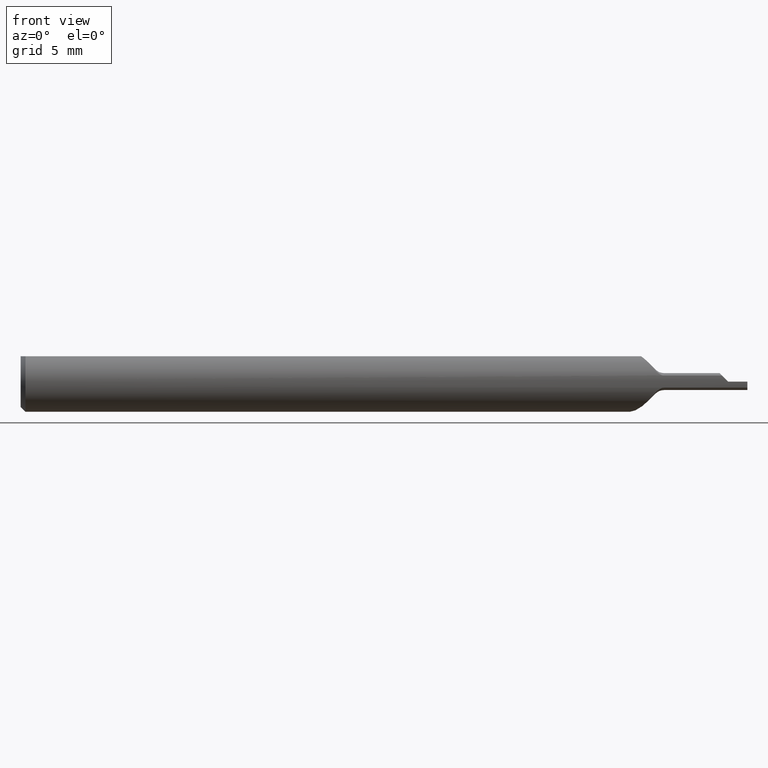
[diagram: clean part render]
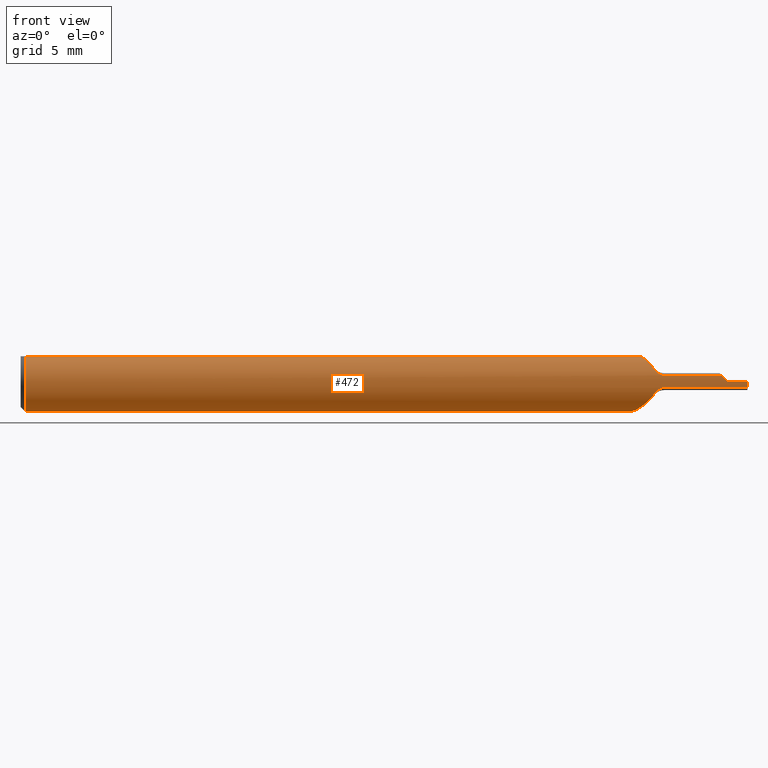
[diagram: same view with one face highlighted and labeled with its STEP entity id]
A machine part, front view. The second image highlights one B-rep face of the part: STEP entity #472.
In plain terms, the highlighted cylindrical surface (edge-blend (fillet) strip) has radius 1.5837 mm, axis along (-1, -0, -0).
Its self-contained STEP definition (entity closure, byte-faithful):
#8 = AXIS2_PLACEMENT_3D ( 'NONE', #458, #41, #248 ) ;
#13 = ORIENTED_EDGE ( 'NONE', *, *, #675, .F. ) ;
#34 = CARTESIAN_POINT ( 'NONE',  ( 1.451605865465561029, -0.06192549230869275056, 0.008394134534439167544 ) ) ;
#36 = LINE ( 'NONE', #112, #115 ) ;
#41 = DIRECTION ( 'NONE',  ( 1.000000000000000000, 0.000000000000000000, 0.000000000000000000 ) ) ;
#43 = CARTESIAN_POINT ( 'NONE',  ( 1.275358580142834652, -0.02771937408487656906, -0.05598997618229406559 ) ) ;
#44 = CARTESIAN_POINT ( 'NONE',  ( 1.328000000000000069, -0.06108080859774817767, -0.01251628223735987665 ) ) ;
#45 = DIRECTION ( 'NONE',  ( -1.000000000000000000, -0.000000000000000000, -0.000000000000000000 ) ) ;
#49 = CARTESIAN_POINT ( 'NONE',  ( 1.226797206081656988, 0.05592648175052387927, 0.02799002807874791804 ) ) ;
#55 = VERTEX_POINT ( 'NONE', #758 ) ;
#56 = CARTESIAN_POINT ( 'NONE',  ( 1.243886696044967710, 0.02097139061819394690, -0.05887746032603118074 ) ) ;
#67 = AXIS2_PLACEMENT_3D ( 'NONE', #673, #387, #175 ) ;
#74 = B_SPLINE_CURVE_WITH_KNOTS ( 'NONE', 3,
 ( #44, #851, #335, #270, #696, #566 ),
 .UNSPECIFIED., .F., .F.,
 ( 4, 2, 4 ),
 ( 1.961994360720521054E-07, 0.0002730078589434217838, 0.0005458195184507715850 ),
 .UNSPECIFIED. ) ;
#85 = CARTESIAN_POINT ( 'NONE',  ( 1.500000000000000222, 0.000000000000000000, 0.000000000000000000 ) ) ;
#94 = EDGE_CURVE ( 'NONE', #613, #55, #494, .T. ) ;
#99 = CARTESIAN_POINT ( 'NONE',  ( 1.305791166114985691, -0.05560643594609585016, -0.02887963871485707892 ) ) ;
#106 = ORIENTED_EDGE ( 'NONE', *, *, #238, .F. ) ;
#110 = ORIENTED_EDGE ( 'NONE', *, *, #94, .F. ) ;
#112 = CARTESIAN_POINT ( 'NONE',  ( 0.000000000000000000, -0.03386738844375224849, 0.05234999999999997294 ) ) ;
#115 = VECTOR ( 'NONE', #397, 39.37007874015748143 ) ;
#121 = CARTESIAN_POINT ( 'NONE',  ( 1.290272464145333586, -0.04369941679369290788, -0.04464469873827295321 ) ) ;
#125 = CARTESIAN_POINT ( 'NONE',  ( 1.266747118912807668, -0.01641413537815324813, -0.06028500946651924042 ) ) ;
#128 = LINE ( 'NONE', #403, #932 ) ;
#133 = EDGE_CURVE ( 'NONE', #686, #228, #36, .T. ) ;
#136 = CARTESIAN_POINT ( 'NONE',  ( 1.235731661812906168, 0.03691102635646652946, -0.05046266542797422233 ) ) ;
#138 = VERTEX_POINT ( 'NONE', #623 ) ;
#146 = VECTOR ( 'NONE', #376, 39.37007874015748143 ) ;
#153 = CARTESIAN_POINT ( 'NONE',  ( 1.280692836829395720, -0.03386738844375222768, 0.05234999999999997294 ) ) ;
#158 = LINE ( 'NONE', #872, #607 ) ;
#168 = CARTESIAN_POINT ( 'NONE',  ( 1.310322330470336416, -0.05790887318343304613, -0.02311027707806784237 ) ) ;
#169 = ORIENTED_EDGE ( 'NONE', *, *, #888, .F. ) ;
#171 = EDGE_CURVE ( 'NONE', #651, #897, #714, .T. ) ;
#175 = DIRECTION ( 'NONE',  ( 0.000000000000000000, 0.000000000000000000, 1.000000000000000000 ) ) ;
#199 = ORIENTED_EDGE ( 'NONE', *, *, #713, .F. ) ;
#203 = CARTESIAN_POINT ( 'NONE',  ( 1.284238538065767488, -0.03778417318145798481, -0.04975082321463265844 ) ) ;
#219 = DIRECTION ( 'NONE',  ( 0.000000000000000000, 0.000000000000000000, -1.000000000000000000 ) ) ;
#228 = VERTEX_POINT ( 'NONE', #699 ) ;
#238 = EDGE_CURVE ( 'NONE', #301, #320, #74, .T. ) ;
#248 = DIRECTION ( 'NONE',  ( 0.000000000000000000, 0.000000000000000000, -1.000000000000000000 ) ) ;
#262 = CARTESIAN_POINT ( 'NONE',  ( 1.328000000000000069, -0.06108080859774817767, 0.01251628223735987665 ) ) ;
#266 = CARTESIAN_POINT ( 'NONE',  ( 1.258604930610921491, -0.004327236796243898870, -0.06233527284537540569 ) ) ;
#270 = CARTESIAN_POINT ( 'NONE',  ( 1.315005209892369908, -0.05976161622093303927, -0.01789465587661744767 ) ) ;
#275 = B_SPLINE_CURVE_WITH_KNOTS ( 'NONE', 3,
 ( #336, #698, #121, #203, #406, #43, #630, #125, #930, #266, #484, #790, #561, #56, #941, #846, #136, #936, #716, #416, #854, #553, #639, #409, #488, #783, #704, #420, #49, #341, #346, #710 ),
 .UNSPECIFIED., .F., .F.,
 ( 4, 2, 2, 2, 2, 2, 2, 2, 2, 2, 2, 2, 2, 2, 2, 4 ),
 ( 0.0005794281082984382471, 0.0009548221528387602301, 0.001330216197379082213, 0.001705610241919404196, 0.002081004286459726179, 0.002456398331000047945, 0.002831792375540370145, 0.003207186420080692345, 0.003582580464621014545, 0.003957974509161336744, 0.004333368553701655475, 0.004708762598241975073, 0.005084156642782293803, 0.005459550687322614268, 0.005834944731862932998, 0.006585732820943570459 ),
 .UNSPECIFIED. ) ;
#276 = VERTEX_POINT ( 'NONE', #942 ) ;
#300 = CARTESIAN_POINT ( 'NONE',  ( 1.447483717762639843, -0.06108080859774819155, 0.01251628223735986277 ) ) ;
#301 = VERTEX_POINT ( 'NONE', #481 ) ;
#317 = CYLINDRICAL_SURFACE ( 'NONE', #67, 0.06235000000000000264 ) ;
#319 = CARTESIAN_POINT ( 'NONE',  ( 1.328000000000000069, -0.06108080859774817767, 0.01251628223735987665 ) ) ;
#320 = VERTEX_POINT ( 'NONE', #775 ) ;
#324 =( BOUNDED_CURVE ( )  B_SPLINE_CURVE ( 3, ( #455, #541, #34, #300 ),
 .UNSPECIFIED., .F., .T. ) 
 B_SPLINE_CURVE_WITH_KNOTS ( ( 4, 4 ),
 ( 4.712388980384689674, 4.914504563857410524 ),
 .UNSPECIFIED. ) 
 CURVE ( )  GEOMETRIC_REPRESENTATION_ITEM ( )  RATIONAL_B_SPLINE_CURVE ( ( 1.000000000000000000, 0.9965986704452858280, 0.9965986704452858280, 1.000000000000000000 ) ) 
 REPRESENTATION_ITEM ( '' )  );
#331 = CARTESIAN_POINT ( 'NONE',  ( 1.310322330470336416, -0.05790887318343304613, 0.02311027707806784237 ) ) ;
#333 = EDGE_CURVE ( 'NONE', #686, #276, #509, .T. ) ;
#335 = CARTESIAN_POINT ( 'NONE',  ( 1.320917692584105074, -0.06080192119646979365, -0.01395692878461889282 ) ) ;
#336 = CARTESIAN_POINT ( 'NONE',  ( 1.296399338642361565, -0.04885000000000000453, -0.03874532229831106206 ) ) ;
#339 = ORIENTED_EDGE ( 'NONE', *, *, #914, .F. ) ;
#341 = CARTESIAN_POINT ( 'NONE',  ( 1.230229168581589816, 0.04839488953273463068, 0.04049962096708457221 ) ) ;
#343 = EDGE_CURVE ( 'NONE', #228, #613, #879, .T. ) ;
#344 = DIRECTION ( 'NONE',  ( -1.000000000000000000, -0.000000000000000000, -0.000000000000000000 ) ) ;
#346 = CARTESIAN_POINT ( 'NONE',  ( 1.233383615634219943, 0.04162220789005000032, 0.04733308533908438254 ) ) ;
#349 = CARTESIAN_POINT ( 'NONE',  ( 0.009999999999999887451, 0.000000000000000000, 0.000000000000000000 ) ) ;
#351 = EDGE_CURVE ( 'NONE', #629, #651, #837, .T. ) ;
#360 = CARTESIAN_POINT ( 'NONE',  ( 1.296399338642361565, -0.04885000000000000453, 0.03874532229831106206 ) ) ;
#369 = B_SPLINE_CURVE_WITH_KNOTS ( 'NONE', 3,
 ( #331, #477, #772, #627, #926, #262 ),
 .UNSPECIFIED., .F., .F.,
 ( 4, 2, 4 ),
 ( 3.346069241335862166E-07, 0.0002723149243493555301, 0.0005442952417745775505 ),
 .UNSPECIFIED. ) ;
#376 = DIRECTION ( 'NONE',  ( -1.000000000000000000, -0.000000000000000000, -0.000000000000000000 ) ) ;
#378 = FACE_OUTER_BOUND ( 'NONE', #487, .T. ) ;
#386 = ORIENTED_EDGE ( 'NONE', *, *, #944, .F. ) ;
#387 = DIRECTION ( 'NONE',  ( -1.000000000000000000, -0.000000000000000000, -0.000000000000000000 ) ) ;
#390 = CARTESIAN_POINT ( 'NONE',  ( 1.305816642641693948, -0.05561938142747126224, 0.02884720040887161704 ) ) ;
#392 = VERTEX_POINT ( 'NONE', #593 ) ;
#397 = DIRECTION ( 'NONE',  ( 1.000000000000000000, 0.000000000000000000, 0.000000000000000000 ) ) ;
#403 = CARTESIAN_POINT ( 'NONE',  ( 1.400116490632940414, -0.06108080859774817767, -0.01251628223735987838 ) ) ;
#406 = CARTESIAN_POINT ( 'NONE',  ( 1.281262241805919189, -0.03458795510178934440, -0.05202801643756744393 ) ) ;
#409 = CARTESIAN_POINT ( 'NONE',  ( 1.223972065761688155, 0.06228624462976680570, -0.005677941240280068129 ) ) ;
#416 = CARTESIAN_POINT ( 'NONE',  ( 1.228161114752954086, 0.05291627376059242216, -0.03331670432072829369 ) ) ;
#420 = CARTESIAN_POINT ( 'NONE',  ( 1.225898378997372085, 0.05793721673796965038, 0.02356019257413410894 ) ) ;
#421 = DIRECTION ( 'NONE',  ( 1.000000000000000000, 0.000000000000000000, 0.000000000000000000 ) ) ;
#426 = DIRECTION ( 'NONE',  ( 0.000000000000000000, 0.000000000000000000, 1.000000000000000000 ) ) ;
#428 = EDGE_CURVE ( 'NONE', #828, #392, #158, .T. ) ;
#432 = CARTESIAN_POINT ( 'NONE',  ( 0.000000000000000000, 0.03386738844375224849, 0.05234999999999997294 ) ) ;
#439 = CARTESIAN_POINT ( 'NONE',  ( 1.285897383745186584, -0.03966876148853260009, 0.04859685091853504363 ) ) ;
#442 = CARTESIAN_POINT ( 'NONE',  ( 1.500000000000000222, -0.06235000000000000264, 0.000000000000000000 ) ) ;
#455 = CARTESIAN_POINT ( 'NONE',  ( 1.459999999999999964, -0.06235000000000005121, 4.898587196589446663E-18 ) ) ;
#458 = CARTESIAN_POINT ( 'NONE',  ( 0.009999999999999887451, 0.000000000000000000, 0.000000000000000000 ) ) ;
#470 = CARTESIAN_POINT ( 'NONE',  ( 1.296399338642361565, -0.04885000000000000453, -0.03874532229831106206 ) ) ;
#472 = ADVANCED_FACE ( 'NONE', ( #378 ), #317, .T. ) ;
#477 = CARTESIAN_POINT ( 'NONE',  ( 1.312456224277631200, -0.05899317650530144785, 0.02039327012283572924 ) ) ;
#481 = CARTESIAN_POINT ( 'NONE',  ( 1.328000000000000069, -0.06108080859774817767, -0.01251628223735987665 ) ) ;
#483 = EDGE_CURVE ( 'NONE', #897, #392, #324, .T. ) ;
#484 = CARTESIAN_POINT ( 'NONE',  ( 1.255943135934091348, -7.546988640704478863E-05, -0.06249433022256211528 ) ) ;
#487 = EDGE_LOOP ( 'NONE', ( #169, #682, #745, #742, #856, #386, #110, #907, #570, #864, #715, #13, #339, #199, #106 ) ) ;
#488 = CARTESIAN_POINT ( 'NONE',  ( 1.223860078364205517, 0.06254238248359815511, -0.0006170433720268707432 ) ) ;
#491 = AXIS2_PLACEMENT_3D ( 'NONE', #349, #421, #219 ) ;
#494 = B_SPLINE_CURVE_WITH_KNOTS ( 'NONE', 3,
 ( #679, #542, #390, #835 ),
 .UNSPECIFIED., .F., .F.,
 ( 4, 4 ),
 ( 0.0006507702106821684936, 0.001225573850485195924 ),
 .UNSPECIFIED. ) ;
#509 = CIRCLE ( 'NONE', #491, 0.06235000000000000264 ) ;
#519 = DIRECTION ( 'NONE',  ( 1.000000000000000000, 0.000000000000000000, 0.000000000000000000 ) ) ;
#523 = CARTESIAN_POINT ( 'NONE',  ( 0.009999999999999887451, 0.03386738844375224849, 0.05234999999999997294 ) ) ;
#541 = CARTESIAN_POINT ( 'NONE',  ( 1.455792198643444779, -0.06235000000000000958, 0.004207801356555392579 ) ) ;
#542 = CARTESIAN_POINT ( 'NONE',  ( 1.301072565682184878, -0.05255656474577561493, 0.03407209525848768628 ) ) ;
#553 = CARTESIAN_POINT ( 'NONE',  ( 1.225324714678055038, 0.05922021216607439853, -0.02011771535692728763 ) ) ;
#561 = CARTESIAN_POINT ( 'NONE',  ( 1.248476377301064311, 0.01261289760007555487, -0.06121494403357938957 ) ) ;
#566 = CARTESIAN_POINT ( 'NONE',  ( 1.310322330470336416, -0.05790887318343304613, -0.02311027707806784237 ) ) ;
#570 = ORIENTED_EDGE ( 'NONE', *, *, #133, .F. ) ;
#591 = LINE ( 'NONE', #432, #146 ) ;
#593 = CARTESIAN_POINT ( 'NONE',  ( 1.447483717762639843, -0.06108080859774819155, 0.01251628223735986277 ) ) ;
#607 = VECTOR ( 'NONE', #519, 39.37007874015748143 ) ;
#613 = VERTEX_POINT ( 'NONE', #666 ) ;
#623 = CARTESIAN_POINT ( 'NONE',  ( 1.237253451677763127, 0.03386738844375224849, 0.05234999999999997294 ) ) ;
#625 = CARTESIAN_POINT ( 'NONE',  ( 1.459999999999999964, -0.06235000000000005121, 4.898587196589446663E-18 ) ) ;
#627 = CARTESIAN_POINT ( 'NONE',  ( 1.320907247954247188, -0.06080279617227262595, 0.01395688338791105029 ) ) ;
#628 = CARTESIAN_POINT ( 'NONE',  ( 2.249639673992804202E-32, -0.06234999999999999570, 1.836970198721036837E-16 ) ) ;
#629 = VERTEX_POINT ( 'NONE', #727 ) ;
#630 = CARTESIAN_POINT ( 'NONE',  ( 1.272418020745532896, -0.02402511148135728566, -0.05767582010599425074 ) ) ;
#639 = CARTESIAN_POINT ( 'NONE',  ( 1.224706418543551445, 0.06062052779184415319, -0.01539372914681419804 ) ) ;
#651 = VERTEX_POINT ( 'NONE', #442 ) ;
#666 = CARTESIAN_POINT ( 'NONE',  ( 1.296399338642361565, -0.04885000000000000453, 0.03874532229831106206 ) ) ;
#673 = CARTESIAN_POINT ( 'NONE',  ( 0.000000000000000000, 0.000000000000000000, 0.000000000000000000 ) ) ;
#675 = EDGE_CURVE ( 'NONE', #138, #677, #591, .T. ) ;
#676 = CARTESIAN_POINT ( 'NONE',  ( 1.301102011543064041, -0.05257991969705722718, -0.03404264939760872494 ) ) ;
#677 = VERTEX_POINT ( 'NONE', #523 ) ;
#679 = CARTESIAN_POINT ( 'NONE',  ( 1.296399338642361565, -0.04885000000000000453, 0.03874532229831106206 ) ) ;
#682 = ORIENTED_EDGE ( 'NONE', *, *, #351, .T. ) ;
#686 = VERTEX_POINT ( 'NONE', #890 ) ;
#694 = CARTESIAN_POINT ( 'NONE',  ( 1.296399338642361565, -0.04885000000000000453, -0.03874532229831106206 ) ) ;
#695 = VECTOR ( 'NONE', #344, 39.37007874015748143 ) ;
#696 = CARTESIAN_POINT ( 'NONE',  ( 1.312455560994939763, -0.05899283946902382503, -0.02039411465581098329 ) ) ;
#698 = CARTESIAN_POINT ( 'NONE',  ( 1.293350853450839111, -0.04643209741520624295, -0.04179380748983375221 ) ) ;
#699 = CARTESIAN_POINT ( 'NONE',  ( 1.280692836829395720, -0.03386738844375222768, 0.05234999999999997294 ) ) ;
#704 = CARTESIAN_POINT ( 'NONE',  ( 1.224573172394210152, 0.06091883353372612442, 0.01416684433326350669 ) ) ;
#707 = CIRCLE ( 'NONE', #8, 0.06235000000000000264 ) ;
#710 = CARTESIAN_POINT ( 'NONE',  ( 1.237253451677763127, 0.03386738844375224849, 0.05234999999999997294 ) ) ;
#712 = B_SPLINE_CURVE_WITH_KNOTS ( 'NONE', 3,
 ( #168, #99, #676, #694 ),
 .UNSPECIFIED., .F., .F.,
 ( 4, 4 ),
 ( 3.354477029340792193E-07, 0.0005794281082984382471 ),
 .UNSPECIFIED. ) ;
#713 = EDGE_CURVE ( 'NONE', #320, #859, #712, .T. ) ;
#714 = LINE ( 'NONE', #628, #695 ) ;
#715 = ORIENTED_EDGE ( 'NONE', *, *, #759, .T. ) ;
#716 = CARTESIAN_POINT ( 'NONE',  ( 1.230779670453844510, 0.04725170962974347549, -0.04095620529989571490 ) ) ;
#721 = DIRECTION ( 'NONE',  ( -1.000000000000000000, -0.000000000000000000, -0.000000000000000000 ) ) ;
#727 = CARTESIAN_POINT ( 'NONE',  ( 1.500000000000000222, -0.06108080859774807359, -0.01251628223735986797 ) ) ;
#734 = CARTESIAN_POINT ( 'NONE',  ( 1.291112191683478683, -0.04465650536416684163, 0.04403246925719388194 ) ) ;
#742 = ORIENTED_EDGE ( 'NONE', *, *, #483, .T. ) ;
#745 = ORIENTED_EDGE ( 'NONE', *, *, #171, .T. ) ;
#758 = CARTESIAN_POINT ( 'NONE',  ( 1.310322330470336416, -0.05790887318343304613, 0.02311027707806784237 ) ) ;
#759 = EDGE_CURVE ( 'NONE', #276, #677, #707, .T. ) ;
#772 = CARTESIAN_POINT ( 'NONE',  ( 1.314942088398638687, -0.05974776359960010802, 0.01794378335571905625 ) ) ;
#775 = CARTESIAN_POINT ( 'NONE',  ( 1.310322330470336416, -0.05790887318343304613, -0.02311027707806784237 ) ) ;
#783 = CARTESIAN_POINT ( 'NONE',  ( 1.224160415314311301, 0.06185911183911504962, 0.009240164052845939793 ) ) ;
#790 = CARTESIAN_POINT ( 'NONE',  ( 1.250879551721306937, 0.008396659779750135014, -0.06192772489130794061 ) ) ;
#828 = VERTEX_POINT ( 'NONE', #319 ) ;
#835 = CARTESIAN_POINT ( 'NONE',  ( 1.310322330470336416, -0.05790887318343304613, 0.02311027707806784237 ) ) ;
#837 = CIRCLE ( 'NONE', #885, 0.06235000000000000264 ) ;
#846 = CARTESIAN_POINT ( 'NONE',  ( 1.237593964321843210, 0.03314363369441372664, -0.05300355781810979494 ) ) ;
#851 = CARTESIAN_POINT ( 'NONE',  ( 1.324350645160948803, -0.06108080859774819155, -0.01251628223735986277 ) ) ;
#854 = CARTESIAN_POINT ( 'NONE',  ( 1.227069270207275631, 0.05532941876845135637, -0.02916181439695679153 ) ) ;
#856 = ORIENTED_EDGE ( 'NONE', *, *, #428, .F. ) ;
#859 = VERTEX_POINT ( 'NONE', #470 ) ;
#864 = ORIENTED_EDGE ( 'NONE', *, *, #333, .T. ) ;
#872 = CARTESIAN_POINT ( 'NONE',  ( 1.400116490632940414, -0.06108080859774817767, 0.01251628223735987838 ) ) ;
#879 = B_SPLINE_CURVE_WITH_KNOTS ( 'NONE', 3,
 ( #153, #439, #734, #360 ),
 .UNSPECIFIED., .F., .F.,
 ( 4, 4 ),
 ( 4.548525278138623775E-07, 0.0006507702106821684936 ),
 .UNSPECIFIED. ) ;
#885 = AXIS2_PLACEMENT_3D ( 'NONE', #85, #721, #426 ) ;
#888 = EDGE_CURVE ( 'NONE', #629, #301, #128, .T. ) ;
#890 = CARTESIAN_POINT ( 'NONE',  ( 0.009999999999999887451, -0.03386738844375224849, 0.05234999999999997294 ) ) ;
#897 = VERTEX_POINT ( 'NONE', #625 ) ;
#907 = ORIENTED_EDGE ( 'NONE', *, *, #343, .F. ) ;
#914 = EDGE_CURVE ( 'NONE', #859, #138, #275, .T. ) ;
#926 = CARTESIAN_POINT ( 'NONE',  ( 1.324352248459023107, -0.06108080859774820542, 0.01251628223735986797 ) ) ;
#930 = CARTESIAN_POINT ( 'NONE',  ( 1.263992454696816647, -0.01247149335287424214, -0.06122804155407373522 ) ) ;
#932 = VECTOR ( 'NONE', #45, 39.37007874015748143 ) ;
#936 = CARTESIAN_POINT ( 'NONE',  ( 1.232330414659089657, 0.04395119875025053913, -0.04446567886808212855 ) ) ;
#941 = CARTESIAN_POINT ( 'NONE',  ( 1.241673375492364562, 0.02516761314723100010, -0.05722297479438229195 ) ) ;
#942 = CARTESIAN_POINT ( 'NONE',  ( 0.009999999999999887451, 0.000000000000000000, -0.06235000000000000264 ) ) ;
#944 = EDGE_CURVE ( 'NONE', #55, #828, #369, .T. ) ;